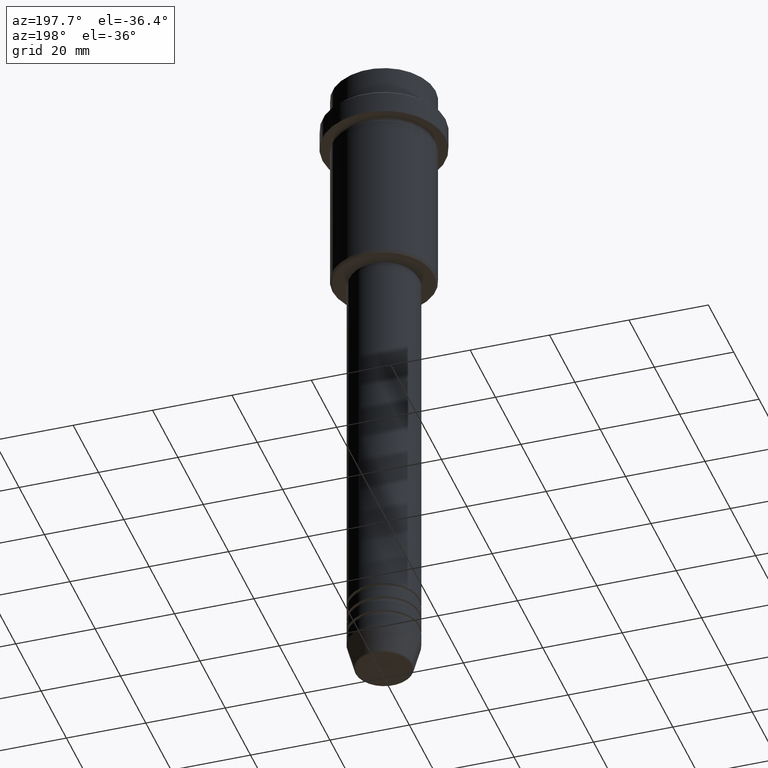
[diagram: clean part render]
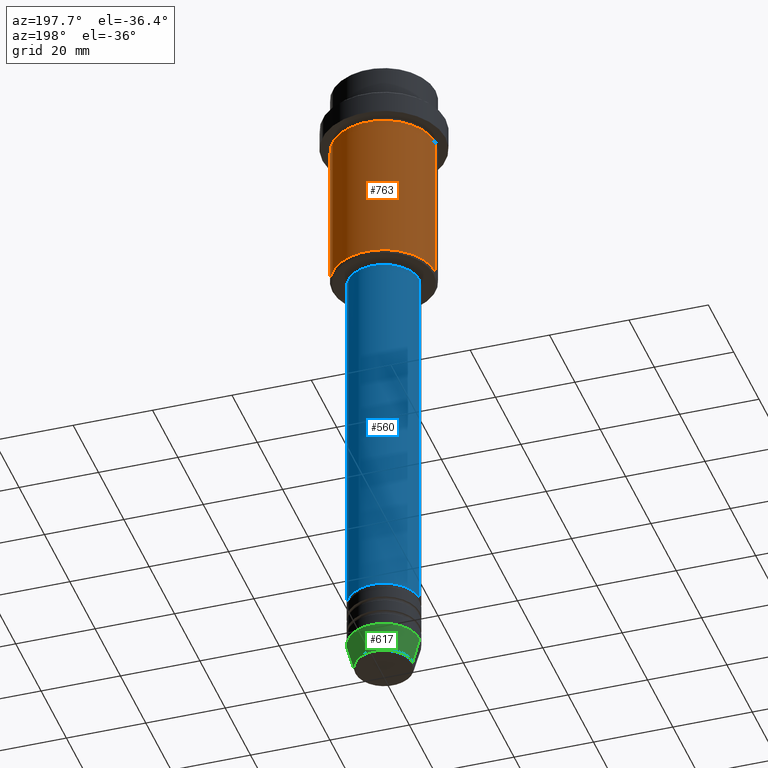
[diagram: same view with three faces highlighted in distinct colors, each labeled with its STEP entity id]
A machine part, auxiliary view with three faces highlighted in distinct colors.
Their STEP definitions:

[orange] entity #763 — the highlighted cylindrical surface (partial cylindrical patch) has radius 13 mm, axis along (-0, -0, 1).
#19 = DIRECTION ( 'NONE',  ( 1.000000000000000000, 0.000000000000000000, 0.000000000000000000 ) ) ;
#62 = DIRECTION ( 'NONE',  ( -1.000000000000000000, 0.000000000000000000, 0.000000000000000000 ) ) ;
#66 = VERTEX_POINT ( 'NONE', #389 ) ;
#75 = EDGE_LOOP ( 'NONE', ( #733, #444, #1293, #821 ) ) ;
#86 = AXIS2_PLACEMENT_3D ( 'NONE', #681, #143, #573 ) ;
#143 = DIRECTION ( 'NONE',  ( -0.000000000000000000, -0.000000000000000000, 1.000000000000000000 ) ) ;
#241 = DIRECTION ( 'NONE',  ( -0.000000000000000000, -0.000000000000000000, 1.000000000000000000 ) ) ;
#311 = VERTEX_POINT ( 'NONE', #1100 ) ;
#342 = DIRECTION ( 'NONE',  ( -0.000000000000000000, -0.000000000000000000, 1.000000000000000000 ) ) ;
#389 = CARTESIAN_POINT ( 'NONE',  ( 13.00000000000000000, 0.000000000000000000, -54.49999999999997158 ) ) ;
#444 = ORIENTED_EDGE ( 'NONE', *, *, #834, .T. ) ;
#482 = LINE ( 'NONE', #1244, #508 ) ;
#501 = VERTEX_POINT ( 'NONE', #1032 ) ;
#508 = VECTOR ( 'NONE', #1147, 1000.000000000000000 ) ;
#520 = CARTESIAN_POINT ( 'NONE',  ( -13.00000000000000000, 1.592040838891559095E-15, -15.99999999999997335 ) ) ;
#567 = LINE ( 'NONE', #1223, #973 ) ;
#573 = DIRECTION ( 'NONE',  ( 1.000000000000000000, 0.000000000000000000, 0.000000000000000000 ) ) ;
#579 = EDGE_CURVE ( 'NONE', #66, #501, #482, .T. ) ;
#681 = CARTESIAN_POINT ( 'NONE',  ( 0.000000000000000000, 0.000000000000000000, 0.000000000000000000 ) ) ;
#712 = AXIS2_PLACEMENT_3D ( 'NONE', #1305, #342, #19 ) ;
#733 = ORIENTED_EDGE ( 'NONE', *, *, #1304, .T. ) ;
#763 = ADVANCED_FACE ( 'NONE', ( #793 ), #907, .T. ) ;
#793 = FACE_OUTER_BOUND ( 'NONE', #75, .T. ) ;
#821 = ORIENTED_EDGE ( 'NONE', *, *, #579, .F. ) ;
#834 = EDGE_CURVE ( 'NONE', #311, #1417, #567, .T. ) ;
#850 = DIRECTION ( 'NONE',  ( -0.000000000000000000, -0.000000000000000000, 1.000000000000000000 ) ) ;
#901 = CIRCLE ( 'NONE', #1195, 13.00000000000000000 ) ;
#907 = CYLINDRICAL_SURFACE ( 'NONE', #86, 13.00000000000000000 ) ;
#973 = VECTOR ( 'NONE', #241, 1000.000000000000000 ) ;
#1025 = EDGE_CURVE ( 'NONE', #501, #1417, #1273, .T. ) ;
#1032 = CARTESIAN_POINT ( 'NONE',  ( 13.00000000000000000, 0.000000000000000000, -15.99999999999997335 ) ) ;
#1100 = CARTESIAN_POINT ( 'NONE',  ( -13.00000000000000000, 1.592040838891559095E-15, -54.49999999999997158 ) ) ;
#1147 = DIRECTION ( 'NONE',  ( -0.000000000000000000, -0.000000000000000000, 1.000000000000000000 ) ) ;
#1195 = AXIS2_PLACEMENT_3D ( 'NONE', #1400, #850, #62 ) ;
#1223 = CARTESIAN_POINT ( 'NONE',  ( -13.00000000000000000, 1.592040838891559095E-15, 0.000000000000000000 ) ) ;
#1244 = CARTESIAN_POINT ( 'NONE',  ( 13.00000000000000000, 0.000000000000000000, 0.000000000000000000 ) ) ;
#1273 = CIRCLE ( 'NONE', #712, 13.00000000000000000 ) ;
#1293 = ORIENTED_EDGE ( 'NONE', *, *, #1025, .F. ) ;
#1304 = EDGE_CURVE ( 'NONE', #66, #311, #901, .T. ) ;
#1305 = CARTESIAN_POINT ( 'NONE',  ( 0.000000000000000000, 0.000000000000000000, -15.99999999999997335 ) ) ;
#1400 = CARTESIAN_POINT ( 'NONE',  ( 0.000000000000000000, 0.000000000000000000, -54.49999999999997158 ) ) ;
#1417 = VERTEX_POINT ( 'NONE', #520 ) ;

[blue] entity #560 — the highlighted cylindrical surface (partial cylindrical patch) has radius 9 mm, axis along (-0, -0, 1).
#53 = CARTESIAN_POINT ( 'NONE',  ( 9.000000000000001776, 0.000000000000000000, 0.000000000000000000 ) ) ;
#82 = DIRECTION ( 'NONE',  ( -0.000000000000000000, -0.000000000000000000, 1.000000000000000000 ) ) ;
#155 = CARTESIAN_POINT ( 'NONE',  ( -9.000000000000001776, 1.102182119232617911E-15, -55.99999999999998579 ) ) ;
#209 = ORIENTED_EDGE ( 'NONE', *, *, #1291, .F. ) ;
#225 = DIRECTION ( 'NONE',  ( -0.000000000000000000, -0.000000000000000000, 1.000000000000000000 ) ) ;
#316 = EDGE_CURVE ( 'NONE', #1405, #1396, #1003, .T. ) ;
#360 = DIRECTION ( 'NONE',  ( -0.000000000000000000, -0.000000000000000000, 1.000000000000000000 ) ) ;
#431 = ORIENTED_EDGE ( 'NONE', *, *, #1123, .T. ) ;
#469 = DIRECTION ( 'NONE',  ( 1.000000000000000000, 0.000000000000000000, 0.000000000000000000 ) ) ;
#480 = AXIS2_PLACEMENT_3D ( 'NONE', #1111, #1002, #576 ) ;
#505 = CARTESIAN_POINT ( 'NONE',  ( -9.000000000000000000, 1.102182119232617714E-15, -150.9999999999998579 ) ) ;
#549 = EDGE_CURVE ( 'NONE', #1384, #884, #1157, .T. ) ;
#560 = ADVANCED_FACE ( 'NONE', ( #1376 ), #701, .T. ) ;
#572 = ORIENTED_EDGE ( 'NONE', *, *, #316, .T. ) ;
#576 = DIRECTION ( 'NONE',  ( 1.000000000000000000, 0.000000000000000000, 0.000000000000000000 ) ) ;
#599 = AXIS2_PLACEMENT_3D ( 'NONE', #1060, #82, #722 ) ;
#668 = AXIS2_PLACEMENT_3D ( 'NONE', #909, #801, #469 ) ;
#692 = CIRCLE ( 'NONE', #480, 9.000000000000000000 ) ;
#701 = CYLINDRICAL_SURFACE ( 'NONE', #668, 9.000000000000001776 ) ;
#722 = DIRECTION ( 'NONE',  ( 1.000000000000000000, 0.000000000000000000, 0.000000000000000000 ) ) ;
#801 = DIRECTION ( 'NONE',  ( -0.000000000000000000, -0.000000000000000000, 1.000000000000000000 ) ) ;
#849 = ORIENTED_EDGE ( 'NONE', *, *, #549, .F. ) ;
#884 = VERTEX_POINT ( 'NONE', #1207 ) ;
#894 = CARTESIAN_POINT ( 'NONE',  ( -9.000000000000001776, 1.102182119232617911E-15, 0.000000000000000000 ) ) ;
#909 = CARTESIAN_POINT ( 'NONE',  ( 0.000000000000000000, 0.000000000000000000, 0.000000000000000000 ) ) ;
#914 = EDGE_LOOP ( 'NONE', ( #431, #572, #209, #849 ) ) ;
#950 = VECTOR ( 'NONE', #360, 1000.000000000000000 ) ;
#1002 = DIRECTION ( 'NONE',  ( -0.000000000000000000, -0.000000000000000000, 1.000000000000000000 ) ) ;
#1003 = LINE ( 'NONE', #894, #1298 ) ;
#1060 = CARTESIAN_POINT ( 'NONE',  ( 0.000000000000000000, 0.000000000000000000, -55.99999999999998579 ) ) ;
#1111 = CARTESIAN_POINT ( 'NONE',  ( 0.000000000000000000, 0.000000000000000000, -150.9999999999998579 ) ) ;
#1123 = EDGE_CURVE ( 'NONE', #1384, #1405, #692, .T. ) ;
#1157 = LINE ( 'NONE', #53, #950 ) ;
#1207 = CARTESIAN_POINT ( 'NONE',  ( 9.000000000000001776, 0.000000000000000000, -55.99999999999998579 ) ) ;
#1291 = EDGE_CURVE ( 'NONE', #884, #1396, #1413, .T. ) ;
#1298 = VECTOR ( 'NONE', #225, 1000.000000000000000 ) ;
#1376 = FACE_OUTER_BOUND ( 'NONE', #914, .T. ) ;
#1384 = VERTEX_POINT ( 'NONE', #1388 ) ;
#1388 = CARTESIAN_POINT ( 'NONE',  ( 9.000000000000000000, 0.000000000000000000, -150.9999999999998579 ) ) ;
#1396 = VERTEX_POINT ( 'NONE', #155 ) ;
#1405 = VERTEX_POINT ( 'NONE', #505 ) ;
#1413 = CIRCLE ( 'NONE', #599, 9.000000000000001776 ) ;

[green] entity #617 — the highlighted conical surface has half-angle 15 deg.
#45 = DIRECTION ( 'NONE',  ( -0.000000000000000000, -0.000000000000000000, 1.000000000000000000 ) ) ;
#56 = DIRECTION ( 'NONE',  ( -0.2588190451025213501, 3.169619151431772337E-17, 0.9659258262890680902 ) ) ;
#69 = DIRECTION ( 'NONE',  ( -0.000000000000000000, -0.000000000000000000, 1.000000000000000000 ) ) ;
#76 = EDGE_CURVE ( 'NONE', #838, #1170, #929, .T. ) ;
#84 = VECTOR ( 'NONE', #1257, 1000.000000000000000 ) ;
#97 = EDGE_CURVE ( 'NONE', #1191, #838, #1367, .T. ) ;
#193 = AXIS2_PLACEMENT_3D ( 'NONE', #1043, #1158, #1149 ) ;
#274 = ORIENTED_EDGE ( 'NONE', *, *, #76, .T. ) ;
#376 = CIRCLE ( 'NONE', #420, 9.000000000000000000 ) ;
#407 = VERTEX_POINT ( 'NONE', #1112 ) ;
#419 = AXIS2_PLACEMENT_3D ( 'NONE', #1164, #69, #827 ) ;
#420 = AXIS2_PLACEMENT_3D ( 'NONE', #1239, #45, #896 ) ;
#428 = ORIENTED_EDGE ( 'NONE', *, *, #853, .F. ) ;
#515 = EDGE_CURVE ( 'NONE', #1191, #407, #796, .T. ) ;
#550 = CARTESIAN_POINT ( 'NONE',  ( -7.223655072137189492, 9.934123627281765110E-16, -169.6294095225512706 ) ) ;
#561 = CARTESIAN_POINT ( 'NONE',  ( -9.000000000000000000, 1.102182119232617714E-15, -162.9999999999999716 ) ) ;
#592 = CARTESIAN_POINT ( 'NONE',  ( -9.000000000000000000, 1.102182119232617714E-15, -162.9999999999999716 ) ) ;
#613 = FACE_OUTER_BOUND ( 'NONE', #649, .T. ) ;
#617 = ADVANCED_FACE ( 'NONE', ( #613 ), #718, .T. ) ;
#649 = EDGE_LOOP ( 'NONE', ( #878, #274, #428, #744 ) ) ;
#718 = CONICAL_SURFACE ( 'NONE', #419, 9.000000000000000000, 0.2617993877991500740 ) ;
#744 = ORIENTED_EDGE ( 'NONE', *, *, #515, .F. ) ;
#796 = LINE ( 'NONE', #933, #84 ) ;
#827 = DIRECTION ( 'NONE',  ( 1.000000000000000000, 0.000000000000000000, 0.000000000000000000 ) ) ;
#838 = VERTEX_POINT ( 'NONE', #550 ) ;
#853 = EDGE_CURVE ( 'NONE', #407, #1170, #376, .T. ) ;
#878 = ORIENTED_EDGE ( 'NONE', *, *, #97, .T. ) ;
#896 = DIRECTION ( 'NONE',  ( 1.000000000000000000, 0.000000000000000000, 0.000000000000000000 ) ) ;
#929 = LINE ( 'NONE', #592, #1036 ) ;
#933 = CARTESIAN_POINT ( 'NONE',  ( 9.000000000000000000, 0.000000000000000000, -162.9999999999999716 ) ) ;
#1036 = VECTOR ( 'NONE', #56, 1000.000000000000000 ) ;
#1043 = CARTESIAN_POINT ( 'NONE',  ( 0.000000000000000000, 0.000000000000000000, -169.6294095225512706 ) ) ;
#1112 = CARTESIAN_POINT ( 'NONE',  ( 9.000000000000000000, 0.000000000000000000, -162.9999999999999716 ) ) ;
#1149 = DIRECTION ( 'NONE',  ( 1.000000000000000000, 0.000000000000000000, 0.000000000000000000 ) ) ;
#1158 = DIRECTION ( 'NONE',  ( -0.000000000000000000, -0.000000000000000000, 1.000000000000000000 ) ) ;
#1164 = CARTESIAN_POINT ( 'NONE',  ( 0.000000000000000000, 0.000000000000000000, -162.9999999999999716 ) ) ;
#1170 = VERTEX_POINT ( 'NONE', #561 ) ;
#1191 = VERTEX_POINT ( 'NONE', #1368 ) ;
#1239 = CARTESIAN_POINT ( 'NONE',  ( 0.000000000000000000, 0.000000000000000000, -162.9999999999999716 ) ) ;
#1257 = DIRECTION ( 'NONE',  ( 0.2588190451025213501, 0.000000000000000000, 0.9659258262890680902 ) ) ;
#1367 = CIRCLE ( 'NONE', #193, 7.223655072137188604 ) ;
#1368 = CARTESIAN_POINT ( 'NONE',  ( 7.223655072137188604, 0.000000000000000000, -169.6294095225512706 ) ) ;